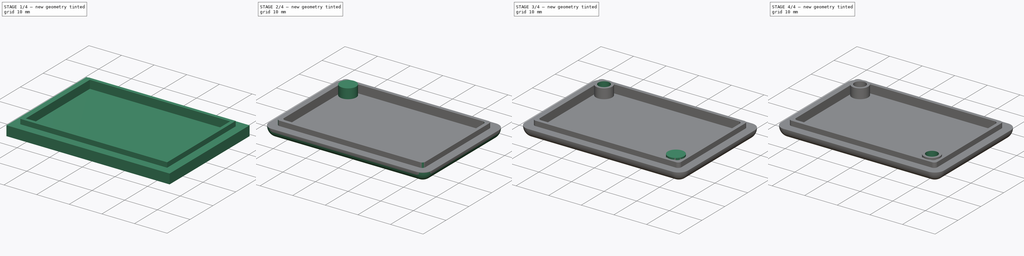
[diagram: build sequence overview — one tinted view per stage of 4, left to right]
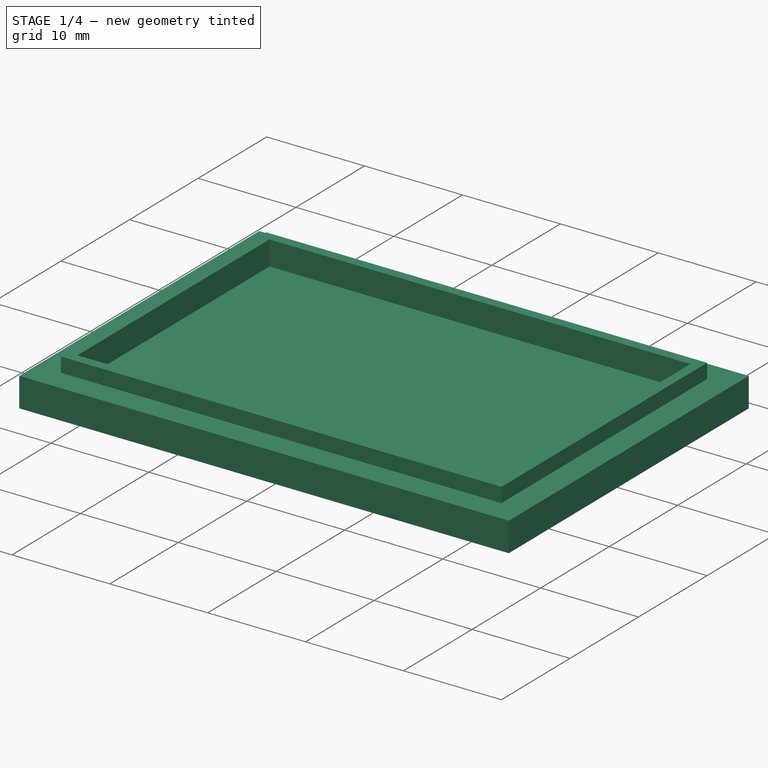
[diagram: stage 1 of 4 — iso view after this stage's code; geometry added in this stage tinted green]
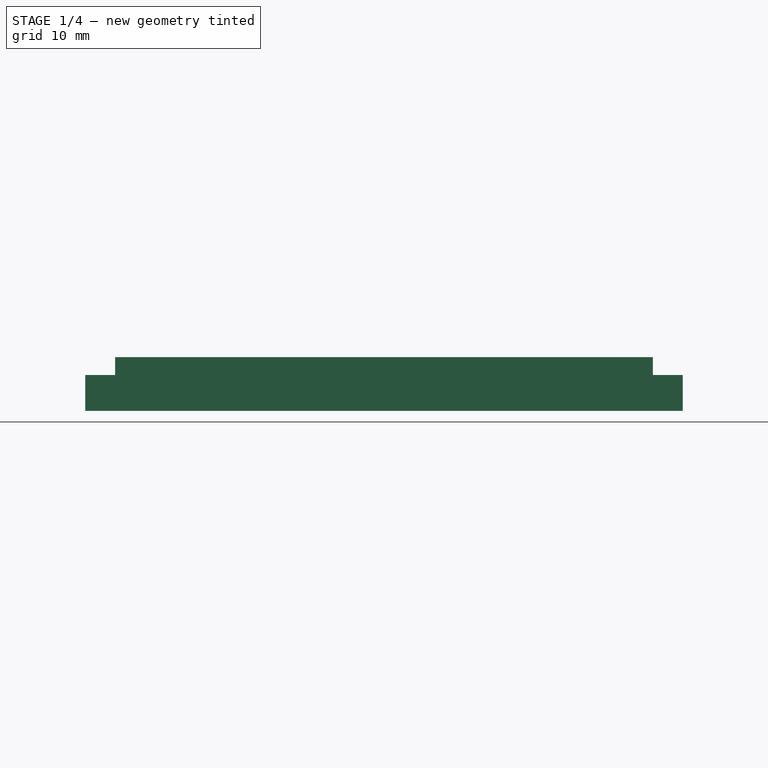
[diagram: stage 1 of 4 — front view after this stage's code; geometry added in this stage tinted green]
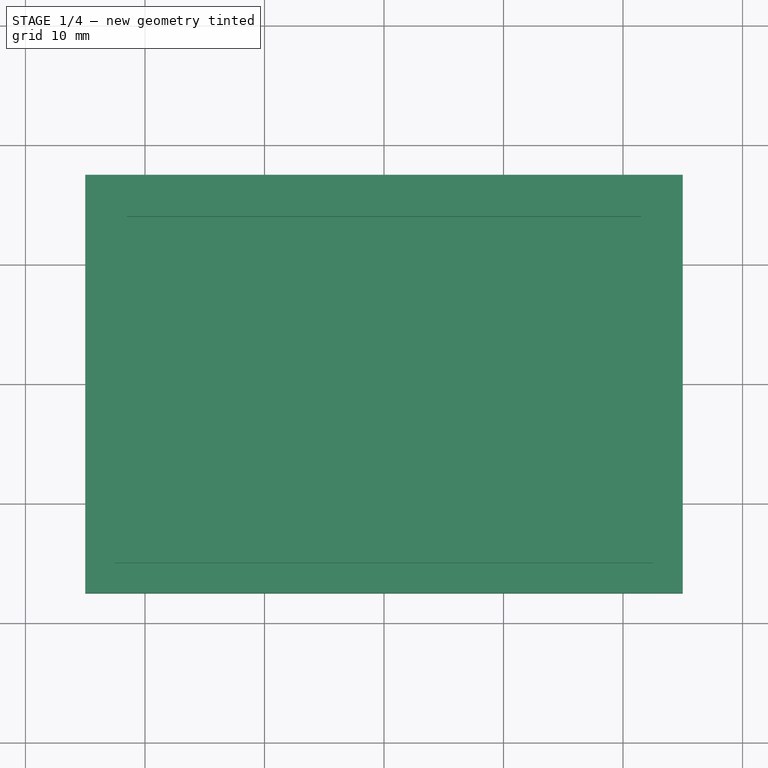
[diagram: stage 1 of 4 — top view after this stage's code; geometry added in this stage tinted green]
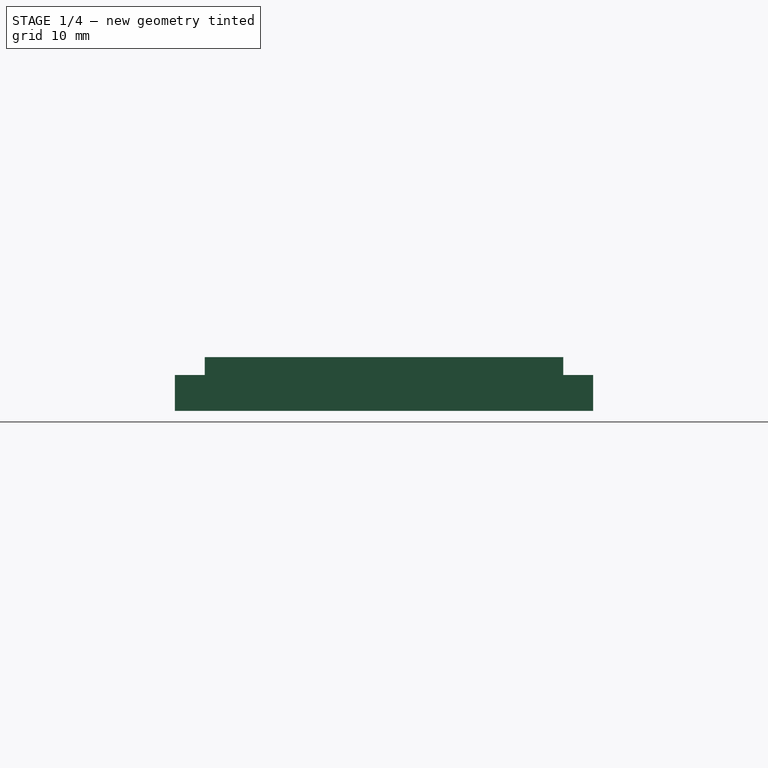
[diagram: stage 1 of 4 — right view after this stage's code; geometry added in this stage tinted green]
FCSTD DOCUMENT  (FreeCAD 0.18R16146 (Git))
Label: hammond_1551G_cover
License: All rights reserved
LicenseURL: http://en.wikipedia.org/wiki/All_rights_reserved
objects: Sketcher::SketchObject×7, PartDesign::Pad×4, PartDesign::Pocket×3, PartDesign::Fillet×2, PartDesign::Chamfer×2, PartDesign::Body×1
note: 26 computed .brp shape members not serialized (recipe doc carries the construction recipe); baked Part::Feature solids carry a one-line shape summary decoded from their .brp

FEATURE [Sketcher::SketchObject] Sketch
  MapMode = 5
  Support = -> [XY_Plane]
  sketch-geometry (4):
    g0: LineSegment StartX=-25 StartY=17.5 StartZ=0 EndX=25 EndY=17.5 EndZ=0
    g1: LineSegment StartX=25 StartY=17.5 StartZ=0 EndX=25 EndY=-17.5 EndZ=0
    g2: LineSegment StartX=25 StartY=-17.5 StartZ=0 EndX=-25 EndY=-17.5 EndZ=0
    g3: LineSegment StartX=-25 StartY=-17.5 StartZ=0 EndX=-25 EndY=17.5 EndZ=0
  constraints (8):
    c: Coincident(g0,g1)
    c: Coincident(g1,g2)
    c: Coincident(g2,g3)
    c: Coincident(g3,g0)
    c: Horizontal(g0)
    c: Horizontal(g2)
    c: Vertical(g1)
    c: Vertical(g3)
FEATURE [PartDesign::Pad] Pad  label="bottom"
  Length = 3
  Length2 = 100
  Profile = -> Sketch
  Type = 0
FEATURE [Sketcher::SketchObject] Sketch002
  MapMode = 5
  Placement = pos=(0,0,3) rot=(0,0,1;0rad)
  sketch-geometry (4):
    g0: LineSegment StartX=-22.5 StartY=15 StartZ=0 EndX=22.5 EndY=15 EndZ=0
    g1: LineSegment StartX=22.5 StartY=15 StartZ=0 EndX=22.5 EndY=-15 EndZ=0
    g2: LineSegment StartX=22.5 StartY=-15 StartZ=0 EndX=-22.5 EndY=-15 EndZ=0
    g3: LineSegment StartX=-22.5 StartY=-15 StartZ=0 EndX=-22.5 EndY=15 EndZ=0
  constraints (8):
    c: Coincident(g0,g1)
    c: Coincident(g1,g2)
    c: Coincident(g2,g3)
    c: Coincident(g3,g0)
    c: Horizontal(g0)
    c: Horizontal(g2)
    c: Vertical(g1)
    c: Vertical(g3)
FEATURE [PartDesign::Pad] Pad001  label="inner rim"
  BaseFeature = -> Pad
  Length = 1.5
  Length2 = 100
  Profile = -> Sketch002
  Type = 0
FEATURE [Sketcher::SketchObject] Sketch003
  MapMode = 5
  Placement = pos=(0,0,4.5) rot=(0,0,1;0rad)
  Support = -> [Pad001]
  sketch-geometry (4):
    g0: LineSegment StartX=-21.5 StartY=14 StartZ=0 EndX=21.5 EndY=14 EndZ=0
    g1: LineSegment StartX=21.5 StartY=14 StartZ=0 EndX=21.5 EndY=-14 EndZ=0
    g2: LineSegment StartX=21.5 StartY=-14 StartZ=0 EndX=-21.5 EndY=-14 EndZ=0
    g3: LineSegment StartX=-21.5 StartY=-14 StartZ=0 EndX=-21.5 EndY=14 EndZ=0
  constraints (8):
    c: Coincident(g0,g1)
    c: Coincident(g1,g2)
    c: Coincident(g2,g3)
    c: Coincident(g3,g0)
    c: Horizontal(g0)
    c: Horizontal(g2)
    c: Vertical(g1)
    c: Vertical(g3)
FEATURE [PartDesign::Pocket] Pocket001  label="inner pocket"
  BaseFeature = -> Pad001
  Length = 2.5
  Length2 = 100
  Profile = -> Sketch003
  Type = 0
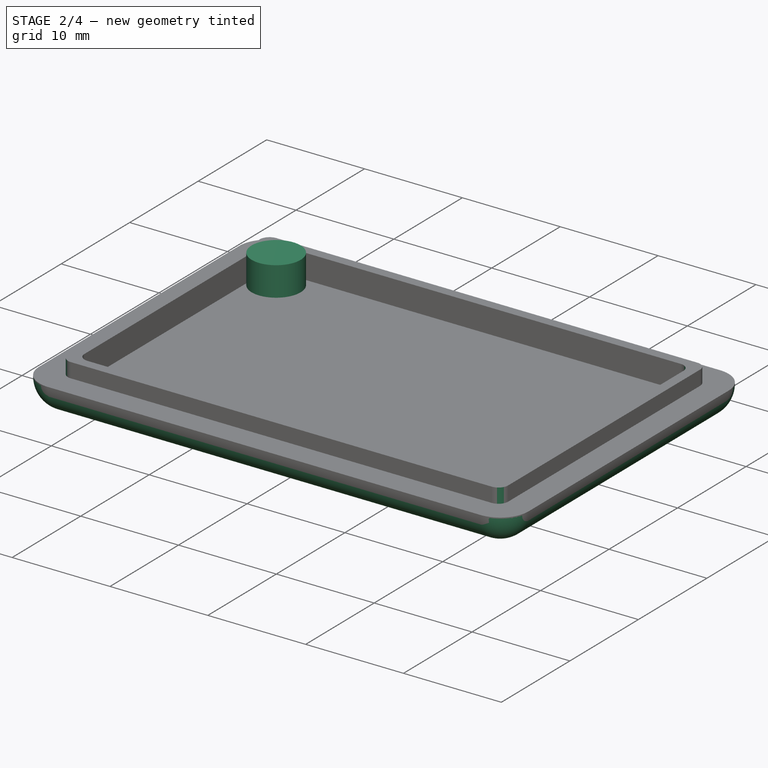
[diagram: stage 2 of 4 — iso view after this stage's code; geometry added in this stage tinted green]
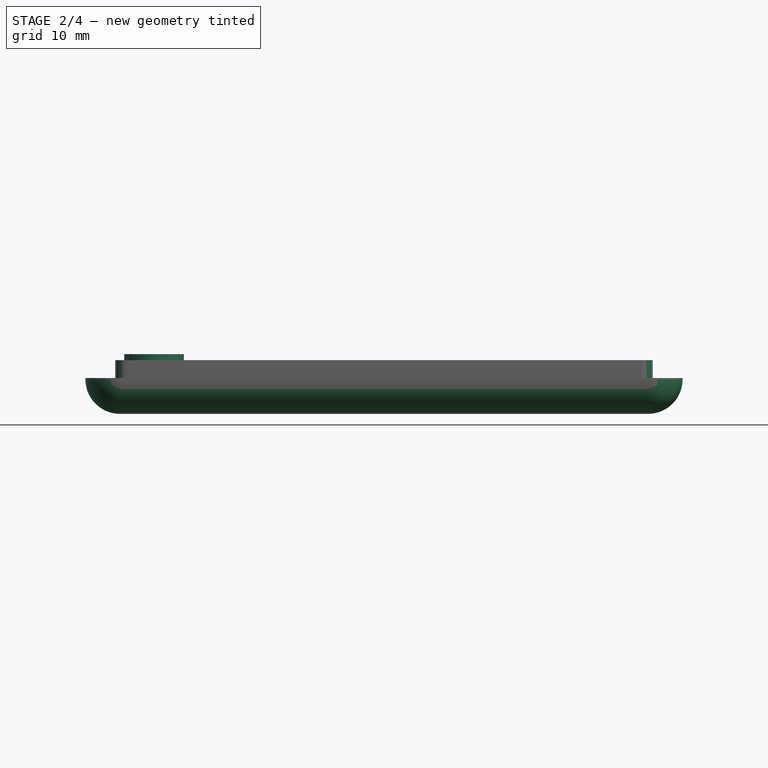
[diagram: stage 2 of 4 — front view after this stage's code; geometry added in this stage tinted green]
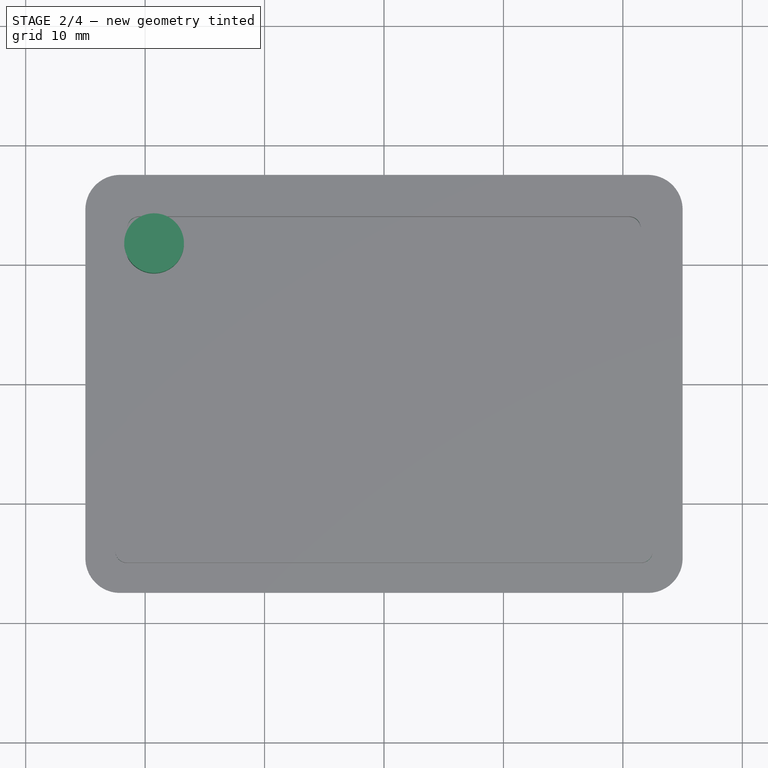
[diagram: stage 2 of 4 — top view after this stage's code; geometry added in this stage tinted green]
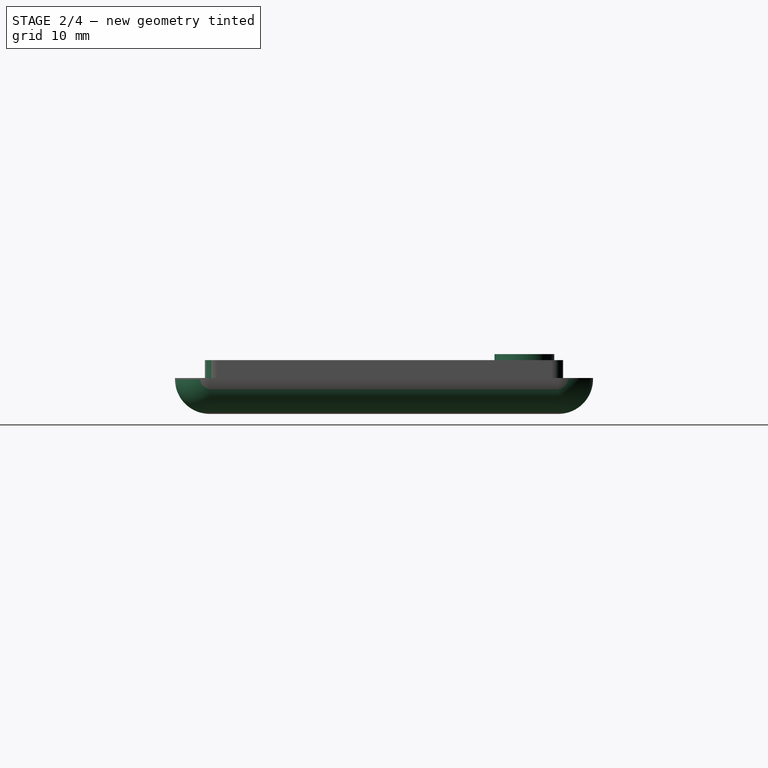
[diagram: stage 2 of 4 — right view after this stage's code; geometry added in this stage tinted green]
FEATURE [PartDesign::Fillet] Fillet  label="outer fillet"
  Base = -> Pocket001 [Edge3,Edge1,Edge6,Edge5,Edge11,Edge8,Edge9,Edge2]
  BaseFeature = -> Pocket001
  Radius = 2.9
FEATURE [PartDesign::Fillet] Fillet001  label="inner rim fillet"
  Base = -> Fillet [Edge62,Edge35,Edge33,Edge32,Edge37,Edge58,Edge57,Edge60]
  BaseFeature = -> Fillet
  Radius = 1
FEATURE [Sketcher::SketchObject] Sketch004
  MapMode = 5
  Placement = pos=(0,0,0) rot=(1,0,0;3.14159rad)
  Support = -> [Fillet001]
  sketch-geometry (1):
    g0: Circle CenterX=19.25 CenterY=11.75 CenterZ=0 NormalX=0 NormalY=0 NormalZ=1 AngleXU=0 Radius=2.5
FEATURE [Sketcher::SketchObject] Sketch005
  MapMode = 5
  Support = -> [XY_Plane]
  sketch-geometry (1):
    g0: Circle CenterX=-19.25 CenterY=11.75 CenterZ=0 NormalX=0 NormalY=0 NormalZ=1 AngleXU=0 Radius=2.5
FEATURE [PartDesign::Pad] Pad002  label="drill post 1"
  BaseFeature = -> Fillet001
  Length = 5
  Length2 = 100
  Profile = -> Sketch005
  Type = 0
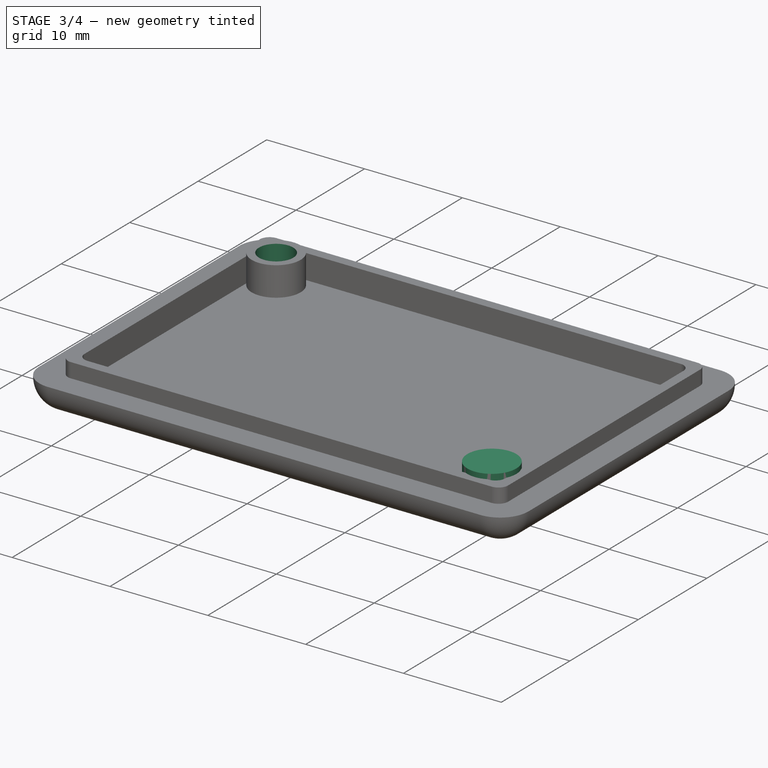
[diagram: stage 3 of 4 — iso view after this stage's code; geometry added in this stage tinted green]
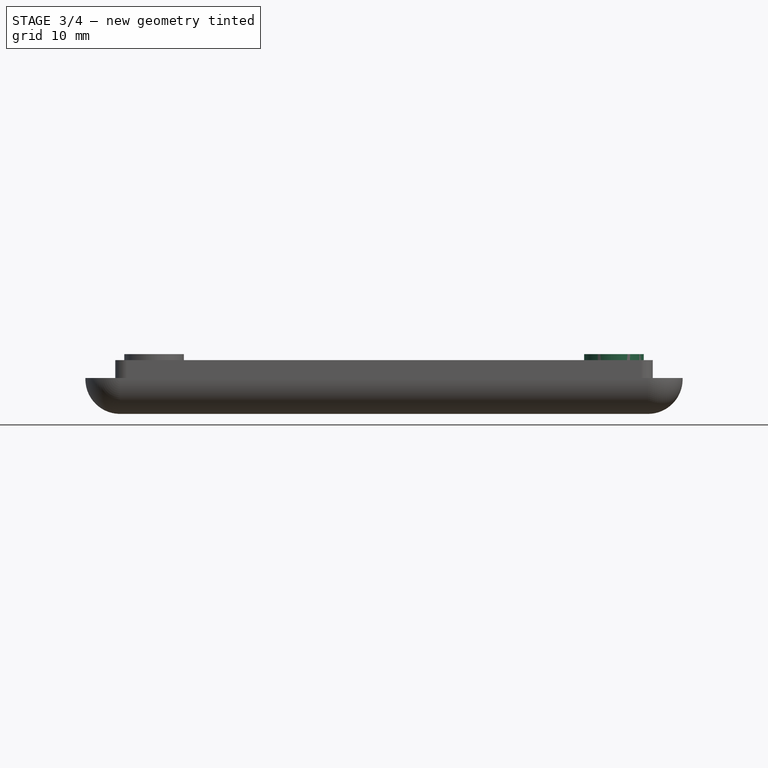
[diagram: stage 3 of 4 — front view after this stage's code; geometry added in this stage tinted green]
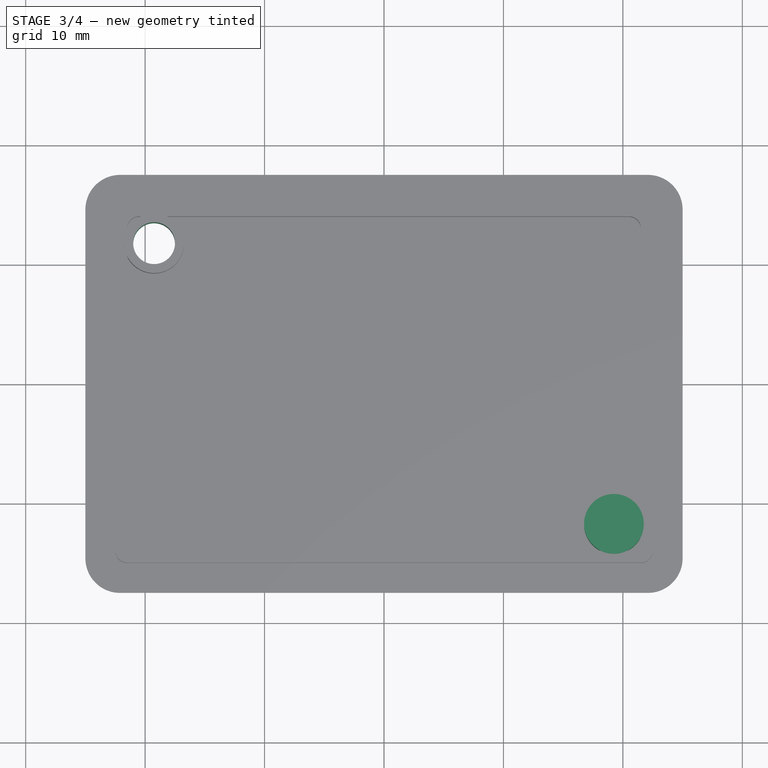
[diagram: stage 3 of 4 — top view after this stage's code; geometry added in this stage tinted green]
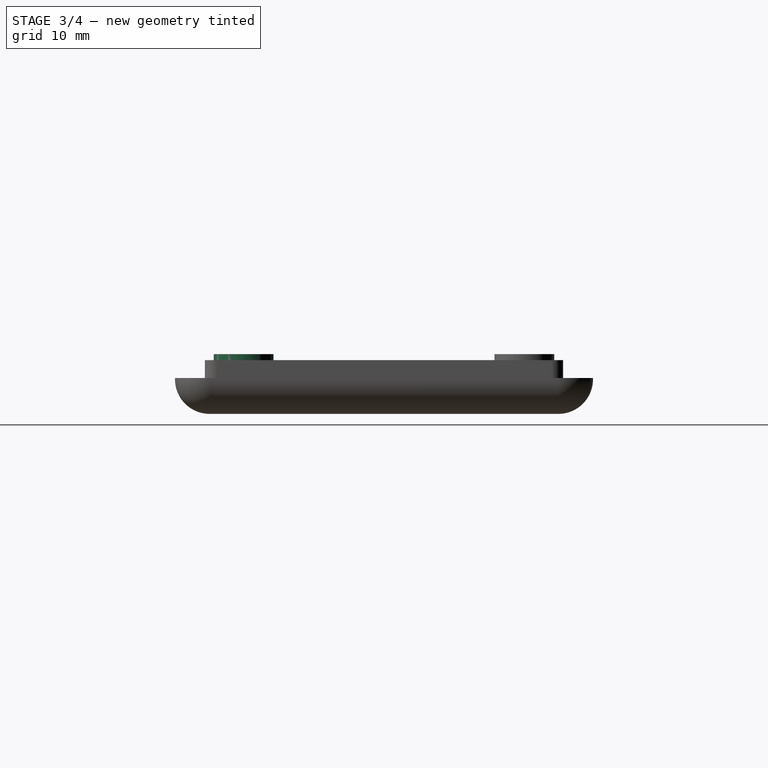
[diagram: stage 3 of 4 — right view after this stage's code; geometry added in this stage tinted green]
FEATURE [PartDesign::Pad] Pad003  label="drill post 2"
  BaseFeature = -> Pad002
  Length = 5
  Length2 = 100
  Profile = -> Sketch004
  Reversed = true
  Type = 0
FEATURE [Sketcher::SketchObject] Sketch006
  MapMode = 5
  Placement = pos=(0,0,0) rot=(1,0,0;3.14159rad)
  Support = -> [Pad003]
  sketch-geometry (1):
    g0: Circle CenterX=-19.25 CenterY=-11.75 CenterZ=0 NormalX=0 NormalY=0 NormalZ=1 AngleXU=0 Radius=1.75
FEATURE [PartDesign::Pocket] Pocket  label="drill post 1 pocket"
  BaseFeature = -> Pad003
  Length = 5
  Length2 = 100
  Profile = -> Sketch006
  Type = 0
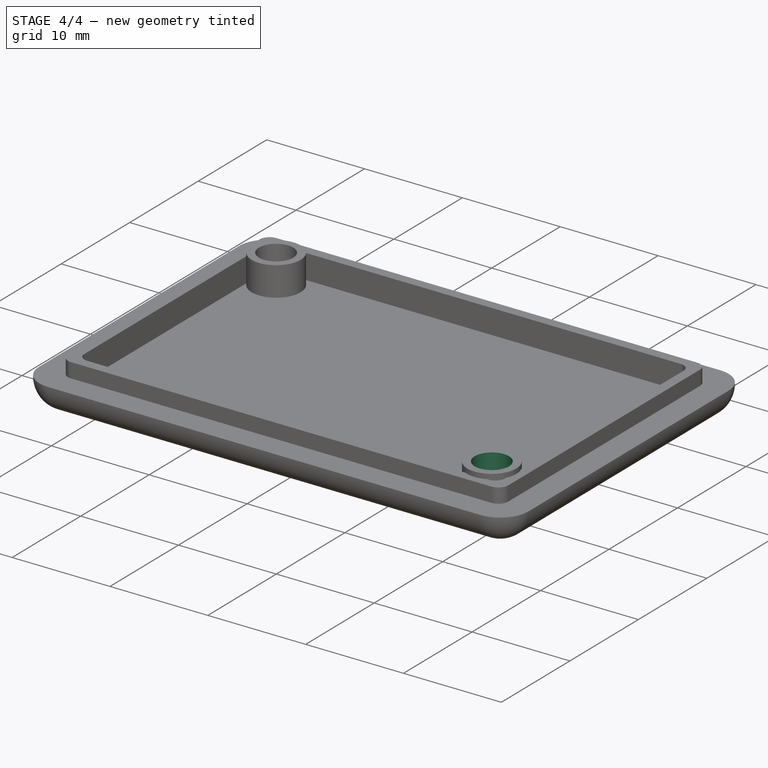
[diagram: stage 4 of 4 — iso view after this stage's code; geometry added in this stage tinted green]
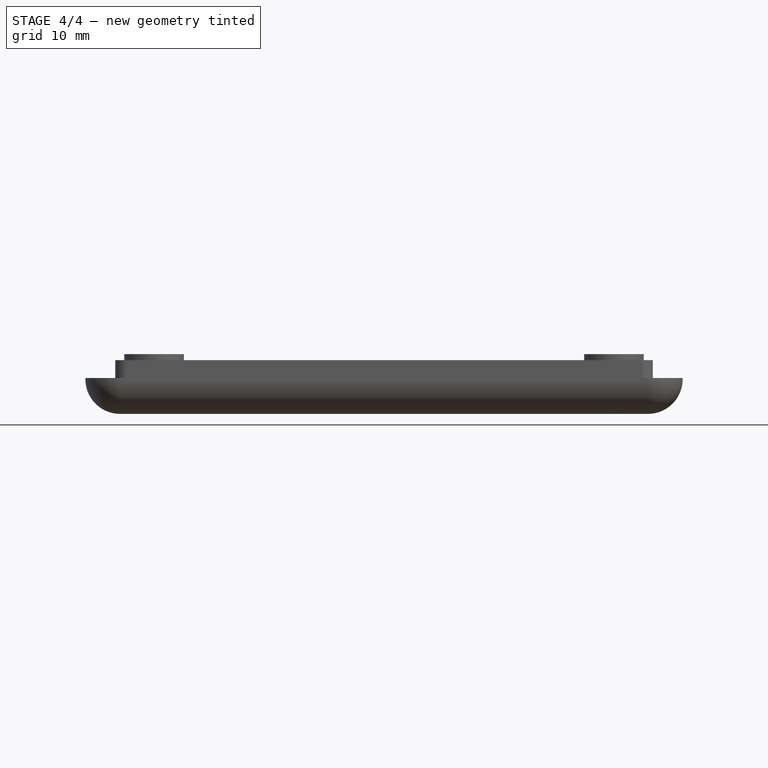
[diagram: stage 4 of 4 — front view after this stage's code; geometry added in this stage tinted green]
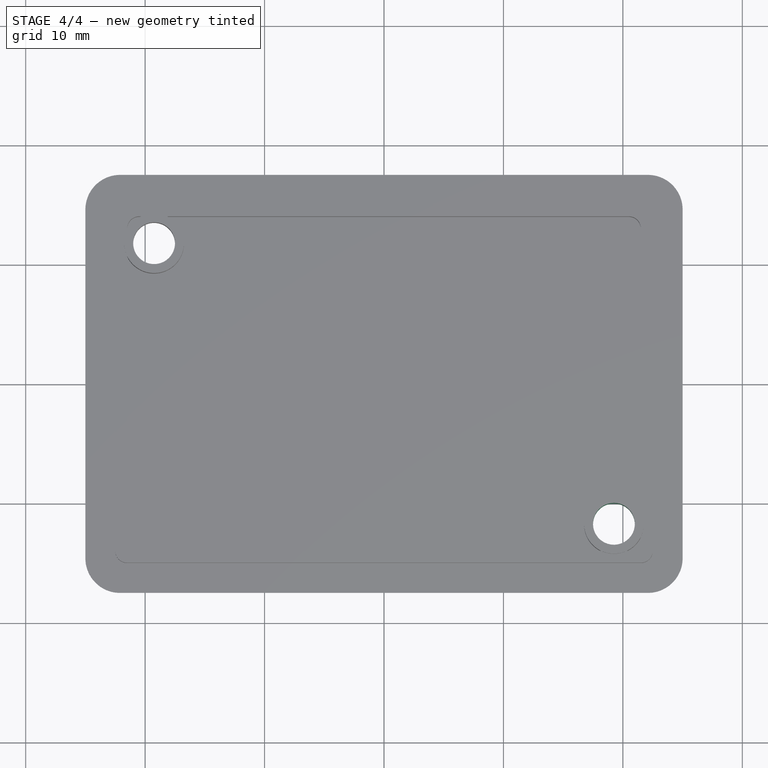
[diagram: stage 4 of 4 — top view after this stage's code; geometry added in this stage tinted green]
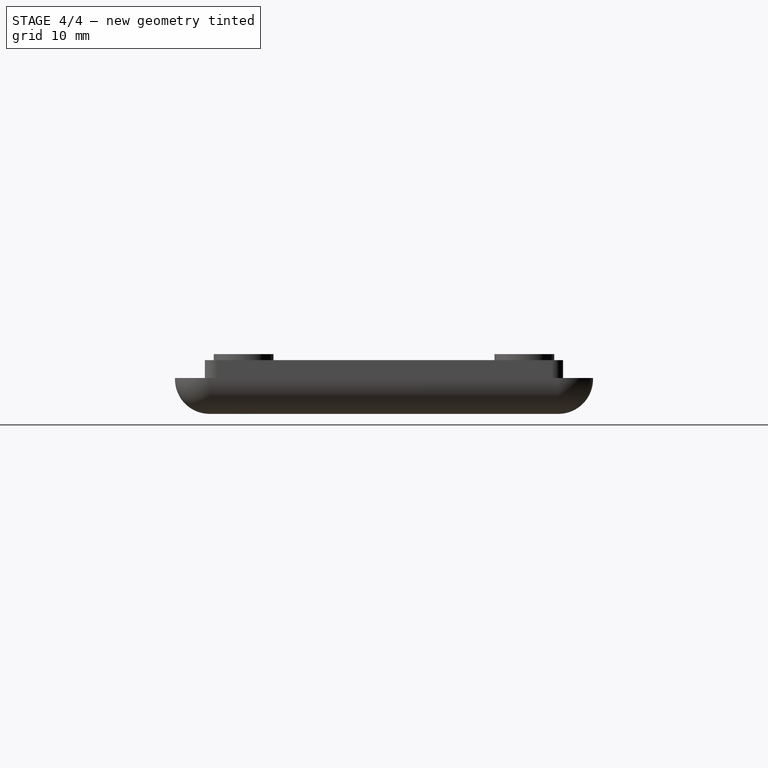
[diagram: stage 4 of 4 — right view after this stage's code; geometry added in this stage tinted green]
FEATURE [Sketcher::SketchObject] Sketch007
  MapMode = 5
  Placement = pos=(0,0,0) rot=(1,0,0;3.14159rad)
  Support = -> [Pocket]
  sketch-geometry (1):
    g0: Circle CenterX=19.25 CenterY=11.75 CenterZ=0 NormalX=0 NormalY=0 NormalZ=1 AngleXU=0 Radius=1.75
FEATURE [PartDesign::Pocket] Pocket002  label="drill post 2 pocket"
  BaseFeature = -> Pocket
  Length = 5
  Length2 = 100
  Profile = -> Sketch007
  Type = 0
FEATURE [PartDesign::Chamfer] Chamfer  label="drill post 1 chamfer"
  Base = -> Pocket002 [Edge123]
  BaseFeature = -> Pocket002
  Size = 1.5
FEATURE [PartDesign::Chamfer] Chamfer001  label="drill post 2 chamfer"
  Base = -> Chamfer [Edge46]
  BaseFeature = -> Chamfer
  Size = 1.5
FEATURE [PartDesign::Body] Body  label="Lid core"
  Group = -> [Sketch,Pad,Sketch002,Pad001,Sketch003,Pocket001,Fillet,Fillet001,Sketch004,Sketch005,Pad002,Pad003,Sketch006,Pocket,Sketch007,Pocket002,Chamfer,Chamfer001]
  Origin = -> Origin
  Tip = -> Chamfer001
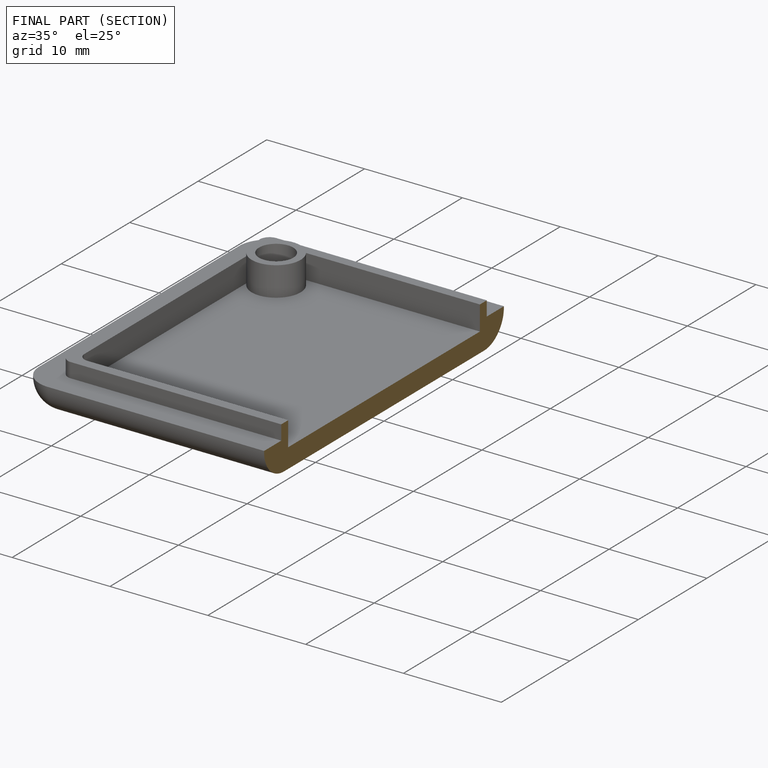
[diagram: finished part — half-section view (interior)]
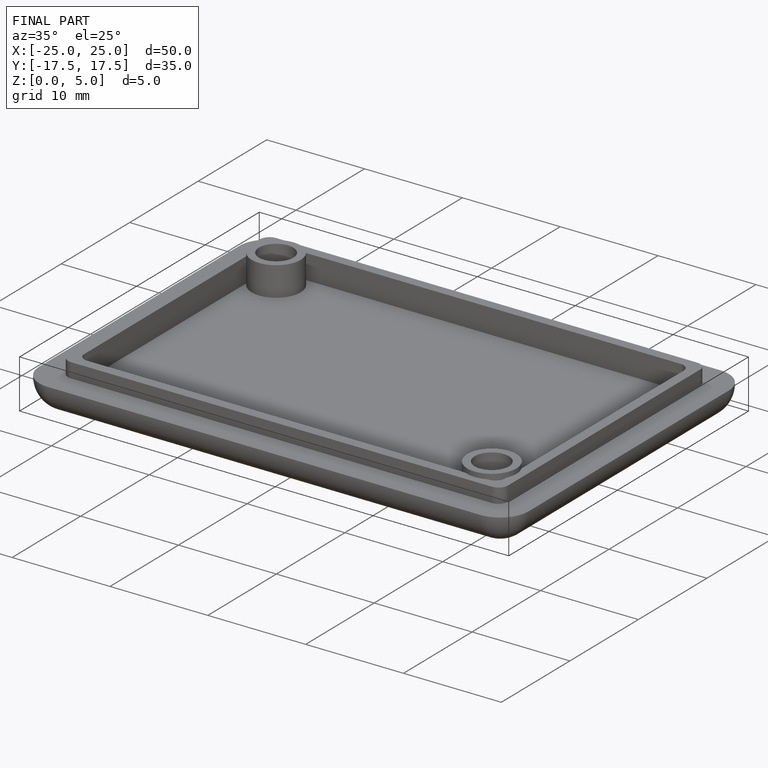
[diagram: finished part — iso view with bounding-box wireframe]
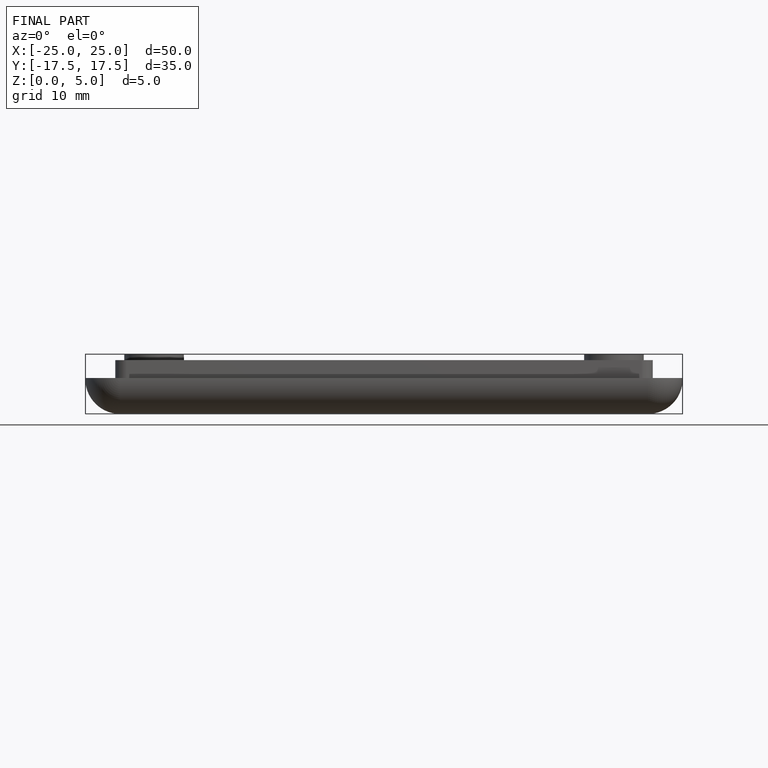
[diagram: finished part — front view with bounding-box wireframe]
